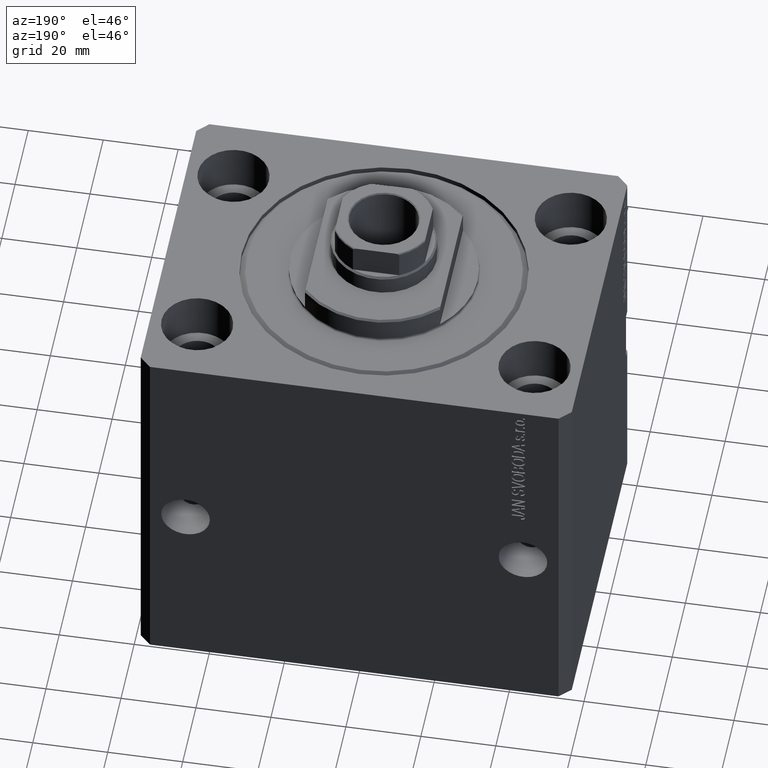
[diagram: clean part render]
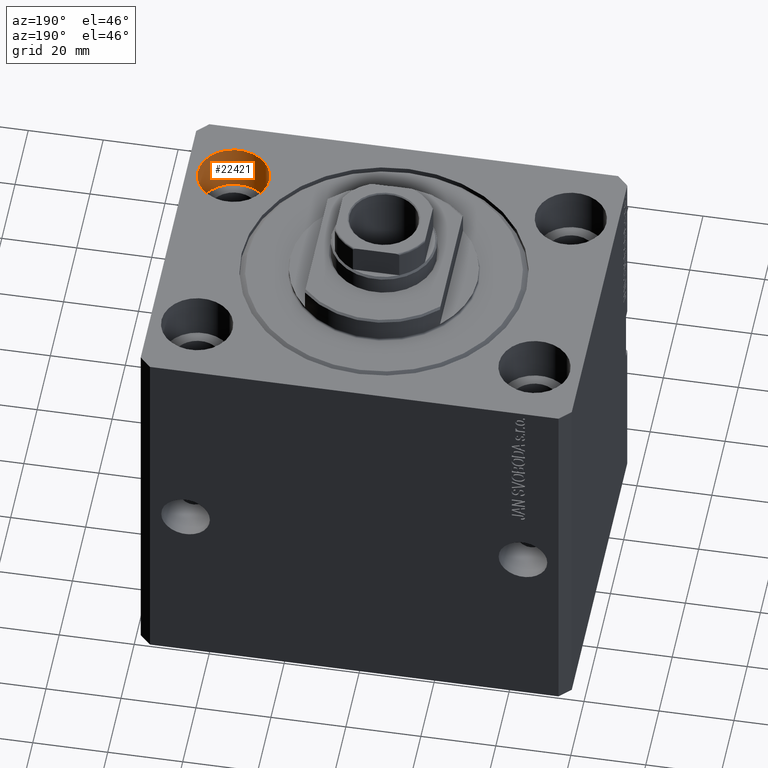
[diagram: same view with one face highlighted and labeled with its STEP entity id]
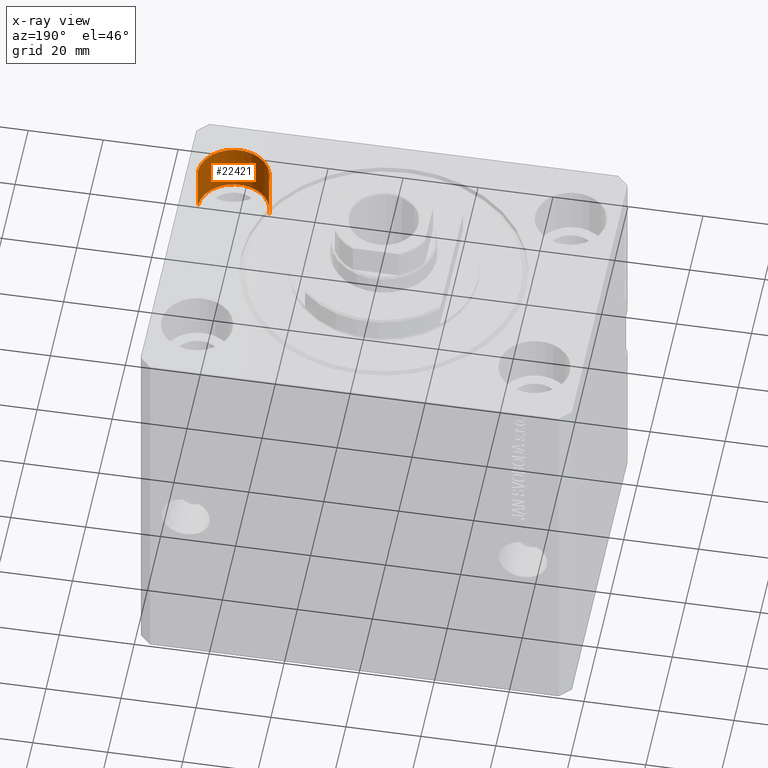
[diagram: x-ray of the same camera — body ghosted, the highlighted face saturated]
A machine part, auxiliary view. The second image highlights one B-rep face of the part: STEP entity #22421.
The next image is the same camera in x-ray: the body ghosted, the highlighted face saturated — about 0% of this face is hidden behind the body in this view.
In plain terms, the highlighted cylindrical surface (edge-blend (fillet) strip) has radius 9.5 mm, axis along (0, 0, 1).
Its self-contained STEP definition (entity closure, byte-faithful):
#38 = CARTESIAN_POINT ( 'NONE',  ( 35.50000000000000000, -27.49999999999999645, -13.00000000000000000 ) ) ;
#468 = ORIENTED_EDGE ( 'NONE', *, *, #20651, .T. ) ;
#3046 = DIRECTION ( 'NONE',  ( -0.000000000000000000, -0.000000000000000000, 1.000000000000000000 ) ) ;
#5056 = AXIS2_PLACEMENT_3D ( 'NONE', #17464, #35344, #17228 ) ;
#9098 = DIRECTION ( 'NONE',  ( 0.000000000000000000, 0.000000000000000000, 1.000000000000000000 ) ) ;
#11949 = VERTEX_POINT ( 'NONE', #34891 ) ;
#15431 = VECTOR ( 'NONE', #3046, 1000.000000000000000 ) ;
#15630 = DIRECTION ( 'NONE',  ( 0.000000000000000000, 0.000000000000000000, 1.000000000000000000 ) ) ;
#17228 = DIRECTION ( 'NONE',  ( 1.000000000000000000, 0.000000000000000000, 0.000000000000000000 ) ) ;
#17310 = AXIS2_PLACEMENT_3D ( 'NONE', #25641, #15630, #40029 ) ;
#17464 = CARTESIAN_POINT ( 'NONE',  ( 45.00000000000000000, -27.49999999999999645, -13.00000000000000000 ) ) ;
#18025 = LINE ( 'NONE', #25230, #32229 ) ;
#19146 = CIRCLE ( 'NONE', #36219, 9.500000000000001776 ) ;
#20023 = ORIENTED_EDGE ( 'NONE', *, *, #41112, .F. ) ;
#20651 = EDGE_CURVE ( 'NONE', #24601, #44500, #19146, .T. ) ;
#21174 = FACE_OUTER_BOUND ( 'NONE', #42936, .T. ) ;
#21509 = EDGE_CURVE ( 'NONE', #11949, #24601, #42317, .T. ) ;
#22421 = ADVANCED_FACE ( 'NONE', ( #21174 ), #45782, .F. ) ;
#23297 = CARTESIAN_POINT ( 'NONE',  ( 45.00000000000000000, -27.49999999999999645, 0.000000000000000000 ) ) ;
#24601 = VERTEX_POINT ( 'NONE', #38571 ) ;
#25230 = CARTESIAN_POINT ( 'NONE',  ( 54.50000000000000000, -27.49999999999999645, -13.00000000000000000 ) ) ;
#25641 = CARTESIAN_POINT ( 'NONE',  ( 45.00000000000000000, -27.49999999999999645, -13.00000000000000000 ) ) ;
#30099 = VERTEX_POINT ( 'NONE', #34017 ) ;
#30921 = ORIENTED_EDGE ( 'NONE', *, *, #40736, .F. ) ;
#32184 = DIRECTION ( 'NONE',  ( -0.000000000000000000, -0.000000000000000000, 1.000000000000000000 ) ) ;
#32229 = VECTOR ( 'NONE', #32184, 1000.000000000000000 ) ;
#33473 = CARTESIAN_POINT ( 'NONE',  ( 54.50000000000000000, -27.49999999999999645, 0.000000000000000000 ) ) ;
#34017 = CARTESIAN_POINT ( 'NONE',  ( 54.50000000000000000, -27.49999999999999645, -13.00000000000000000 ) ) ;
#34891 = CARTESIAN_POINT ( 'NONE',  ( 35.50000000000000000, -27.49999999999999645, -13.00000000000000000 ) ) ;
#35344 = DIRECTION ( 'NONE',  ( -0.000000000000000000, -0.000000000000000000, 1.000000000000000000 ) ) ;
#35882 = CIRCLE ( 'NONE', #17310, 9.500000000000001776 ) ;
#36219 = AXIS2_PLACEMENT_3D ( 'NONE', #23297, #9098, #44646 ) ;
#38571 = CARTESIAN_POINT ( 'NONE',  ( 35.50000000000000000, -27.49999999999999645, 0.000000000000000000 ) ) ;
#39826 = ORIENTED_EDGE ( 'NONE', *, *, #21509, .T. ) ;
#40029 = DIRECTION ( 'NONE',  ( 1.000000000000000000, 0.000000000000000000, 0.000000000000000000 ) ) ;
#40736 = EDGE_CURVE ( 'NONE', #30099, #44500, #18025, .T. ) ;
#41112 = EDGE_CURVE ( 'NONE', #11949, #30099, #35882, .T. ) ;
#42317 = LINE ( 'NONE', #38, #15431 ) ;
#42936 = EDGE_LOOP ( 'NONE', ( #20023, #39826, #468, #30921 ) ) ;
#44500 = VERTEX_POINT ( 'NONE', #33473 ) ;
#44646 = DIRECTION ( 'NONE',  ( 1.000000000000000000, 0.000000000000000000, 0.000000000000000000 ) ) ;
#45782 = CYLINDRICAL_SURFACE ( 'NONE', #5056, 9.500000000000001776 ) ;